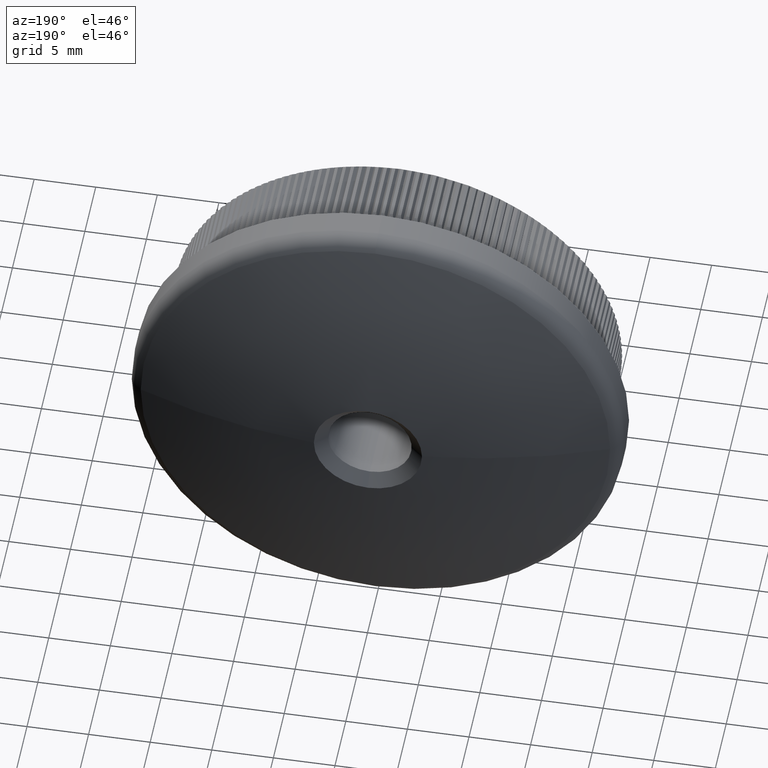
[diagram: clean part render]
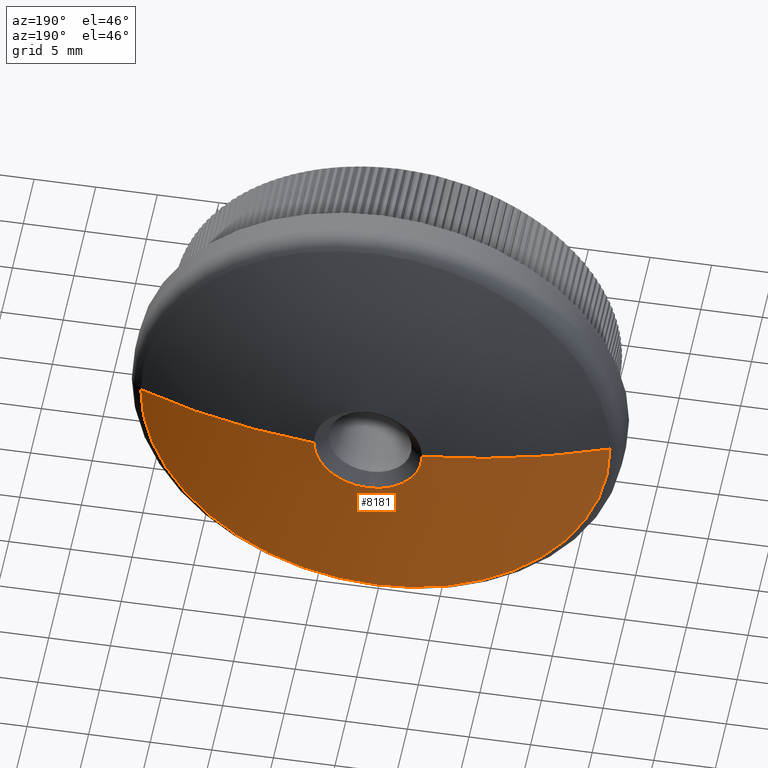
[diagram: same view with one face highlighted and labeled with its STEP entity id]
A machine part, auxiliary view. The second image highlights one B-rep face of the part: STEP entity #8181.
In plain terms, the highlighted spherical surface has radius 52 mm.
Its self-contained STEP definition (entity closure, byte-faithful):
#294 = CARTESIAN_POINT ( 'NONE',  ( 5.373539196490378800E-016, 14.81454397876859400, -4.387827739583074500 ) ) ;
#400 = AXIS2_PLACEMENT_3D ( 'NONE', #603, #19455, #21935 ) ;
#447 = DIRECTION ( 'NONE',  ( 1.000000000000000000, 0.0000000000000000000, -1.224646799147353200E-016 ) ) ;
#603 = CARTESIAN_POINT ( 'NONE',  ( 0.0000000000000000000, 11.38508407702794900, 0.0000000000000000000 ) ) ;
#1147 = CARTESIAN_POINT ( 'NONE',  ( 19.04950495049505900, 11.38508407702794900, 0.0000000000000000000 ) ) ;
#2792 = EDGE_CURVE ( 'NONE', #14950, #24374, #14799, .T. ) ;
#2893 = DIRECTION ( 'NONE',  ( 0.0000000000000000000, 0.0000000000000000000, -1.000000000000000000 ) ) ;
#3635 = VERTEX_POINT ( 'NONE', #4829 ) ;
#3641 = VERTEX_POINT ( 'NONE', #294 ) ;
#4249 = DIRECTION ( 'NONE',  ( -0.0000000000000000000, -1.000000000000000000, -0.0000000000000000000 ) ) ;
#4768 = DIRECTION ( 'NONE',  ( -1.000000000000000000, 0.0000000000000000000, 0.0000000000000000000 ) ) ;
#4829 = CARTESIAN_POINT ( 'NONE',  ( 4.387827739583083400, 14.81454397876859400, 0.0000000000000000000 ) ) ;
#5631 = VERTEX_POINT ( 'NONE', #12688 ) ;
#5718 = CARTESIAN_POINT ( 'NONE',  ( 0.0000000000000000000, 14.81454397876859400, 0.0000000000000000000 ) ) ;
#6340 = CIRCLE ( 'NONE', #13022, 19.04950495049504900 ) ;
#6826 = AXIS2_PLACEMENT_3D ( 'NONE', #18779, #10287, #26279 ) ;
#6881 = EDGE_CURVE ( 'NONE', #3635, #24742, #26848, .T. ) ;
#8012 = DIRECTION ( 'NONE',  ( 0.0000000000000000000, 0.0000000000000000000, -1.000000000000000000 ) ) ;
#8138 = ORIENTED_EDGE ( 'NONE', *, *, #13846, .T. ) ;
#8181 = ADVANCED_FACE ( 'NONE', ( #26019 ), #29280, .T. ) ;
#9770 = DIRECTION ( 'NONE',  ( 0.0000000000000000000, 1.000000000000000000, 0.0000000000000000000 ) ) ;
#9967 = CIRCLE ( 'NONE', #26212, 52.00000000000004300 ) ;
#10287 = DIRECTION ( 'NONE',  ( 0.0000000000000000000, 0.0000000000000000000, 1.000000000000000000 ) ) ;
#12688 = CARTESIAN_POINT ( 'NONE',  ( -4.387827739583083400, 14.81454397876859400, 1.435122722972790800E-015 ) ) ;
#12917 = AXIS2_PLACEMENT_3D ( 'NONE', #23411, #4249, #27945 ) ;
#13022 = AXIS2_PLACEMENT_3D ( 'NONE', #29026, #9770, #2893 ) ;
#13846 = EDGE_CURVE ( 'NONE', #5631, #3641, #15104, .T. ) ;
#14799 = CIRCLE ( 'NONE', #400, 19.04950495049504900 ) ;
#14950 = VERTEX_POINT ( 'NONE', #26547 ) ;
#15104 = CIRCLE ( 'NONE', #12917, 4.387827739583083400 ) ;
#17427 = AXIS2_PLACEMENT_3D ( 'NONE', #5718, #22304, #8012 ) ;
#17620 = ORIENTED_EDGE ( 'NONE', *, *, #6881, .T. ) ;
#17801 = EDGE_LOOP ( 'NONE', ( #30152, #8138, #23073, #17620, #30401, #23579 ) ) ;
#18003 = EDGE_CURVE ( 'NONE', #24742, #14950, #6340, .T. ) ;
#18488 = CARTESIAN_POINT ( 'NONE',  ( -19.04950495049505900, 11.38508407702794900, 2.332891526296543800E-015 ) ) ;
#18779 = CARTESIAN_POINT ( 'NONE',  ( 0.0000000000000000000, -37.00000000000004300, 0.0000000000000000000 ) ) ;
#19455 = DIRECTION ( 'NONE',  ( 0.0000000000000000000, 1.000000000000000000, 0.0000000000000000000 ) ) ;
#19505 = CARTESIAN_POINT ( 'NONE',  ( 0.0000000000000000000, -37.00000000000004300, 0.0000000000000000000 ) ) ;
#21935 = DIRECTION ( 'NONE',  ( 0.0000000000000000000, 0.0000000000000000000, -1.000000000000000000 ) ) ;
#22304 = DIRECTION ( 'NONE',  ( -0.0000000000000000000, -1.000000000000000000, -0.0000000000000000000 ) ) ;
#22538 = EDGE_CURVE ( 'NONE', #5631, #24374, #9967, .T. ) ;
#23073 = ORIENTED_EDGE ( 'NONE', *, *, #27616, .T. ) ;
#23411 = CARTESIAN_POINT ( 'NONE',  ( 0.0000000000000000000, 14.81454397876859400, 0.0000000000000000000 ) ) ;
#23579 = ORIENTED_EDGE ( 'NONE', *, *, #2792, .T. ) ;
#23721 = CARTESIAN_POINT ( 'NONE',  ( 0.0000000000000000000, -37.00000000000004300, 0.0000000000000000000 ) ) ;
#23952 = CIRCLE ( 'NONE', #17427, 4.387827739583083400 ) ;
#24374 = VERTEX_POINT ( 'NONE', #18488 ) ;
#24742 = VERTEX_POINT ( 'NONE', #1147 ) ;
#26019 = FACE_OUTER_BOUND ( 'NONE', #17801, .T. ) ;
#26212 = AXIS2_PLACEMENT_3D ( 'NONE', #19505, #28856, #447 ) ;
#26279 = DIRECTION ( 'NONE',  ( 1.000000000000000000, 0.0000000000000000000, 0.0000000000000000000 ) ) ;
#26547 = CARTESIAN_POINT ( 'NONE',  ( 0.0000000000000000000, 11.38508407702794900, -19.04950495049504900 ) ) ;
#26554 = AXIS2_PLACEMENT_3D ( 'NONE', #23721, #28742, #4768 ) ;
#26848 = CIRCLE ( 'NONE', #26554, 52.00000000000004300 ) ;
#27616 = EDGE_CURVE ( 'NONE', #3641, #3635, #23952, .T. ) ;
#27945 = DIRECTION ( 'NONE',  ( 0.0000000000000000000, 0.0000000000000000000, -1.000000000000000000 ) ) ;
#28742 = DIRECTION ( 'NONE',  ( 0.0000000000000000000, 0.0000000000000000000, -1.000000000000000000 ) ) ;
#28856 = DIRECTION ( 'NONE',  ( 1.224646799147353200E-016, -0.0000000000000000000, 1.000000000000000000 ) ) ;
#29026 = CARTESIAN_POINT ( 'NONE',  ( 0.0000000000000000000, 11.38508407702794900, 0.0000000000000000000 ) ) ;
#29280 = SPHERICAL_SURFACE ( 'NONE', #6826, 52.00000000000004300 ) ;
#30152 = ORIENTED_EDGE ( 'NONE', *, *, #22538, .F. ) ;
#30401 = ORIENTED_EDGE ( 'NONE', *, *, #18003, .T. ) ;